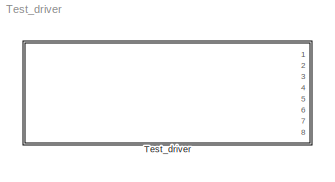
MODEL Test_driver
KIND model
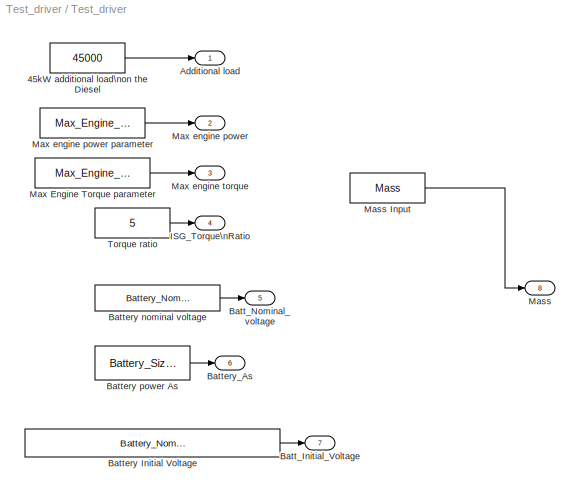
BLOCK [SubSystem] Test_driver
  FunctionWithSeparateData = off
  MaskHideContents = off
  MinAlgLoopOccurrences = off
  Opaque = off
  Ports = [0, 8]
  PropExecContextOutsideSubsystem = off
  RTWSystemCode = Auto
  RequestExecContextInheritance = off
  SID = 590
BLOCK [Constant] Test_driver/45kW additional load\non the Diesel
  SID = 591
  Value = 45000
BLOCK [Outport] Test_driver/Additional load
  IconDisplay = Port number
  SID = 599
BLOCK [Outport] Test_driver/Batt_Initial_Voltage
  IconDisplay = Port number
  Port = 7
  SID = 605
BLOCK [Outport] Test_driver/Batt_Nominal_voltage
  IconDisplay = Port number
  Port = 5
  SID = 603
BLOCK [Constant] Test_driver/Battery Initial Voltage
  SID = 592
  Value = Battery_Nominal_Voltage*Battery_Initial_Percentage
BLOCK [Constant] Test_driver/Battery nominal voltage
  SID = 593
  Value = Battery_Nominal_Voltage
BLOCK [Constant] Test_driver/Battery power As
  SID = 594
  Value = Battery_Size*3600
BLOCK [Outport] Test_driver/Battery_As
  IconDisplay = Port number
  Port = 6
  SID = 604
BLOCK [Outport] Test_driver/ISG_Torque\nRatio
  IconDisplay = Port number
  Port = 4
  SID = 602
BLOCK [Outport] Test_driver/Mass
  IconDisplay = Port number
  Port = 8
  SID = 606
BLOCK [Constant] Test_driver/Mass Input
  SID = 595
  Value = Mass
BLOCK [Constant] Test_driver/Max Engine Torque parameter
  SID = 596
  Value = Max_Engine_Torque
BLOCK [Outport] Test_driver/Max engine power
  IconDisplay = Port number
  Port = 2
  SID = 600
BLOCK [Constant] Test_driver/Max engine power parameter
  SID = 597
  Value = Max_Engine_Power
BLOCK [Outport] Test_driver/Max engine torque
  IconDisplay = Port number
  Port = 3
  SID = 601
BLOCK [Constant] Test_driver/Torque ratio
  SID = 598
  Value = 5
LINE Test_driver/45kW additional load\non the Diesel:1 -> Test_driver/Additional load:1
LINE Test_driver/Battery Initial Voltage:1 -> Test_driver/Batt_Initial_Voltage:1
LINE Test_driver/Battery nominal voltage:1 -> Test_driver/Batt_Nominal_voltage:1
LINE Test_driver/Battery power As:1 -> Test_driver/Battery_As:1
LINE Test_driver/Mass Input:1 -> Test_driver/Mass:1
LINE Test_driver/Max Engine Torque parameter:1 -> Test_driver/Max engine torque:1
LINE Test_driver/Max engine power parameter:1 -> Test_driver/Max engine power:1
LINE Test_driver/Torque ratio:1 -> Test_driver/ISG_Torque\nRatio:1
